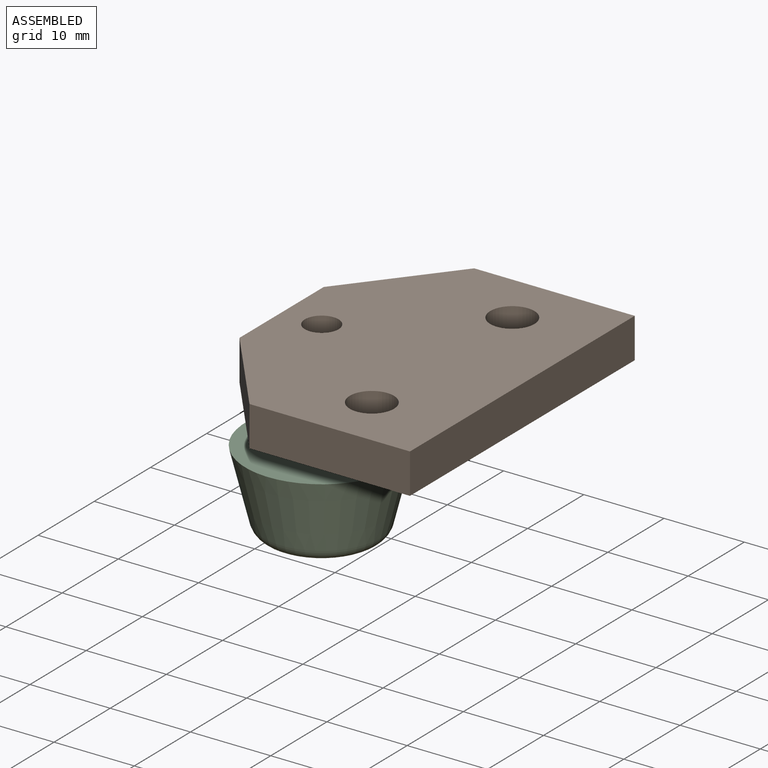
[diagram: assembled view]
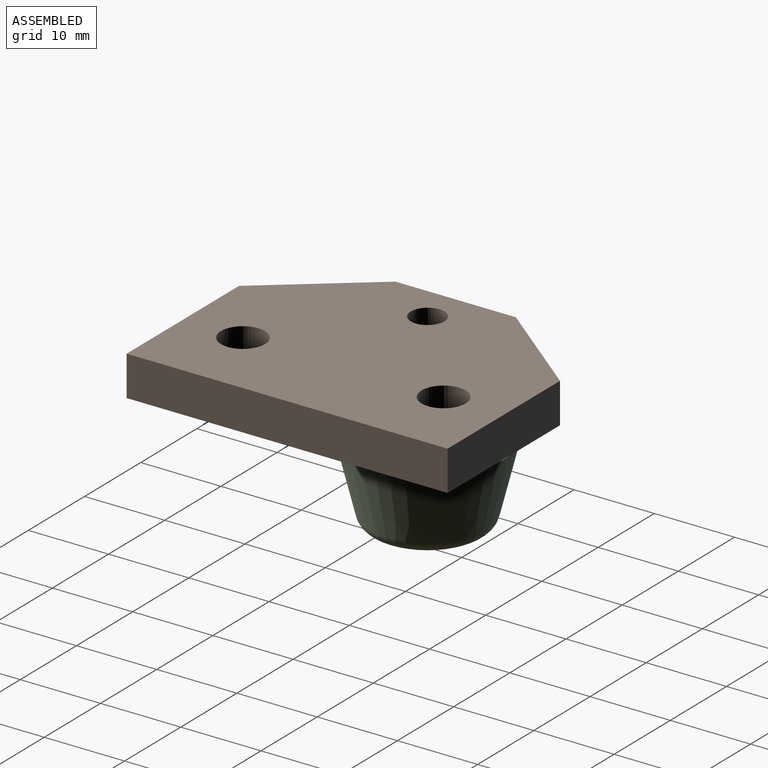
[diagram: assembled view, second angle]
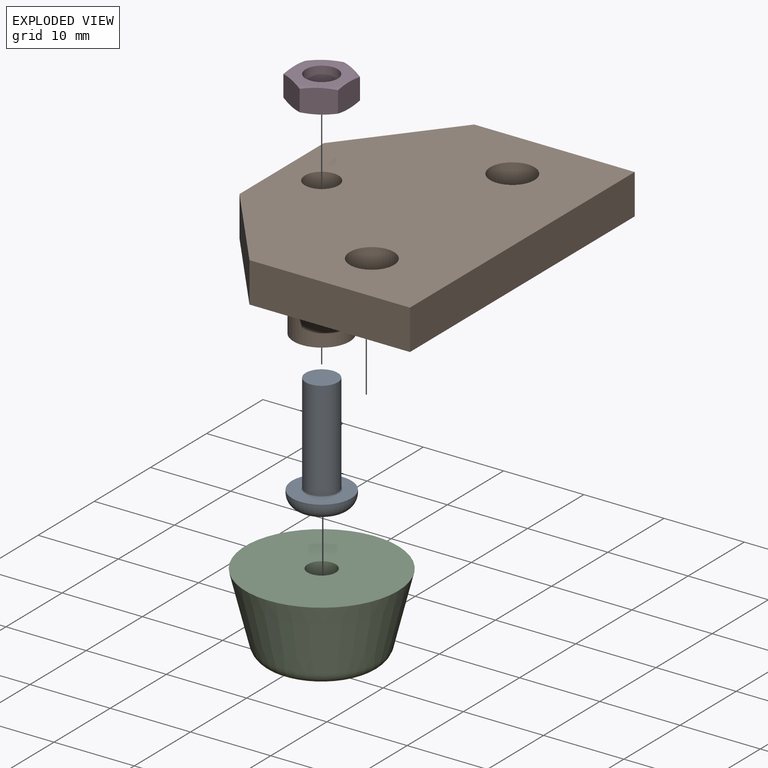
[diagram: exploded view]
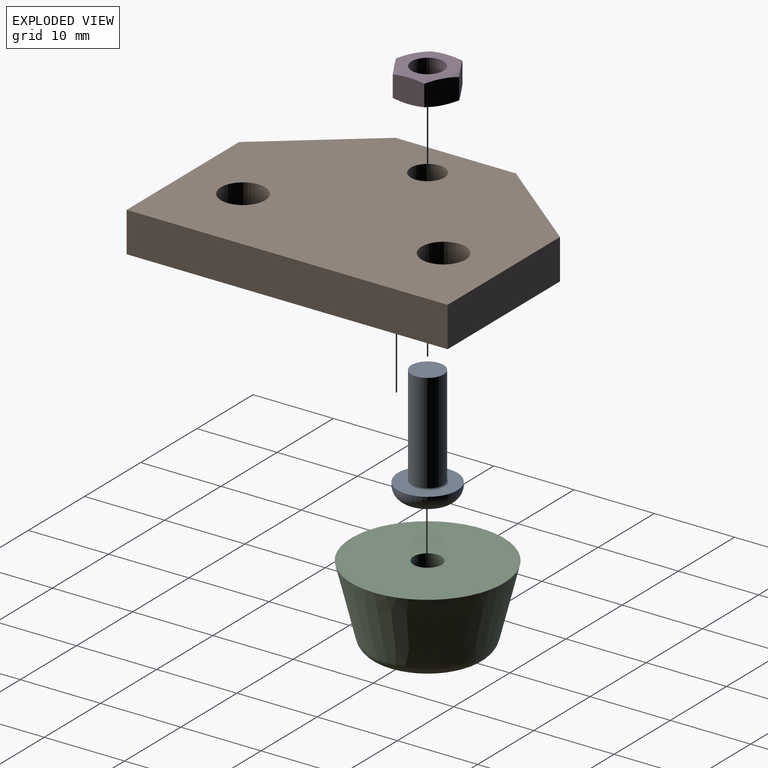
[diagram: exploded view, second angle]
ASSEMBLY  parts=4 mates=3
PART A: 14 faces, bbox 8x8x14.6 mm
  f0: plane 4x4mm, normal (0,0,1), area 7.2mm2, adj f2,f6,f7,f8,f9,f10,f11
  f1: cylinder r=3.7mm len=7.4mm, axis (0,0,1), area 8.8mm2, adj f2,f5
  f2: torus R=2mm, axis (0,0,1), area 49.9mm2, adj f0,f1
  f3: cylinder r=2mm len=12.4mm, axis (0,0,1), area 155.8mm2, adj f4,f13
  f4: torus R=2.2mm, axis (0,0,1), area 4.1mm2, adj f3,f5
  f5: plane 7.4x7.4mm, normal (0,0,-1), area 27.8mm2, adj f1,f4
  f6: plane 1.5x1.25mm, normal (-0.5,-0.87,0), area 2.2mm2, adj f0,f7,f11,f12
  f7: plane 1.5x1.25mm, normal (0.5,-0.87,0), area 2.2mm2, adj f0,f6,f8,f12
  f8: plane 1.5x1.44mm, normal (1,0,0), area 2.2mm2, adj f0,f7,f9,f12
  f9: plane 1.5x1.25mm, normal (0.5,0.87,0), area 2.2mm2, adj f0,f8,f10,f12
  f10: plane 1.5x1.25mm, normal (-0.5,0.87,0), area 2.2mm2, adj f0,f9,f11,f12
  f11: plane 1.5x1.44mm, normal (-1,0,0), area 2.2mm2, adj f0,f6,f10,f12
  f12: plane 2.89x2.5mm, normal (0,0,1), area 5.4mm2, adj f6,f7,f8,f9,f10,f11
  f13: plane 4x4mm, normal (0,0,-1), area 12.6mm2, adj f3
PART B: 33 faces, bbox 30x40x17.2 mm
  f0: plane 10x3.5mm, normal (0,0,1), area 31.6mm2, adj f2,f3,f16,f27,f31
  f1: plane 10x3.5mm, normal (0,0,1), area 31.6mm2, adj f2,f14,f15,f28,f31
  f2: plane 15x9.2mm, normal (1,0,0), area 82.2mm2, adj f0,f1,f4,f9,f10,f12,f13,f14
  f3: plane 4.2x3.5mm, normal (-1,0,0), area 13.8mm2, adj f0,f4,f5,f12,f16,f27
  f4: plane 10x1.75mm, normal (0,0,-1), area 16.3mm2, adj f2,f3,f5,f22,f27
  f5: plane 3.5x3.03mm, normal (0.5,-0.87,0), area 10.5mm2, adj f3,f4,f12,f22,f23,f24
  f6: cylinder r=2.1mm len=4.2mm, axis (0,0,-1), area 39.6mm2, adj f13,f23
  f7: plane 40x5mm, normal (-1,0,0), area 200mm2, adj f8,f11,f12,f13
  f8: plane 20x5mm, normal (0,-1,0), area 100mm2, adj f7,f9,f12,f13
  f9: plane 12.5x10mm, normal (0.78,-0.62,0), area 80mm2, adj f2,f8,f12,f13
  f10: plane 12.5x10mm, normal (0.78,0.62,0), area 80mm2, adj f2,f11,f12,f13
  f11: plane 20x5mm, normal (0,1,0), area 100mm2, adj f7,f10,f12,f13
  f12: plane 40x30mm, normal (0,0,1), area 896.9mm2, adj f2,f3,f5,f7,f8,f9,f10,f11
  f13: plane 40x30mm, normal (0,0,-1), area 1013.6mm2, adj f2,f6,f7,f8,f9,f10,f11,f17
  f14: plane 10x4.2mm, normal (0,-1,0), area 42mm2, adj f1,f2,f12,f15
  f15: plane 4.2x3.5mm, normal (-1,0,0), area 13.8mm2, adj f1,f12,f14,f19,f20,f28
  f16: plane 10x4.2mm, normal (0,1,0), area 42mm2, adj f0,f2,f3,f12
  f17: cylinder r=2.75mm len=5.5mm, axis (0,0,-1), area 86.4mm2, adj f12,f13
  f18: cylinder r=2.75mm len=5.5mm, axis (0,0,-1), area 86.4mm2, adj f12,f13
  f19: plane 10x1.75mm, normal (0,0,-1), area 16.3mm2, adj f2,f15,f20,f21,f28
  f20: plane 3.5x3.03mm, normal (0.5,0.87,0), area 10.5mm2, adj f12,f15,f19,f21,f23,f25
  f21: plane 8x3.5mm, normal (0,1,0), area 28mm2, adj f2,f19,f20,f23
  f22: plane 8x3.5mm, normal (0,-1,0), area 28mm2, adj f2,f4,f5,f23
  f23: plane 12x8.5mm, normal (0,0,1), area 79.4mm2, adj f2,f5,f6,f20,f21,f22,f24,f25
  f24: plane 2x0.97mm, normal (0,-1,0), area 1.9mm2, adj f5,f12,f23,f26
  f25: plane 2x0.97mm, normal (0,1,0), area 1.9mm2, adj f12,f20,f23,f26
  f26: plane 5x2mm, normal (1,0,0), area 10mm2, adj f12,f23,f24,f25
  f27: plane 10x2.7mm, normal (0,-1,0), area 27mm2, adj f0,f2,f3,f4,f29
  f28: plane 10x2.7mm, normal (0,1,0), area 27mm2, adj f1,f2,f15,f19,f29
  f29: plane 7x5mm, normal (0,0,-1), area 19.2mm2, adj f27,f28,f30,f31
  f30: cylinder r=2mm len=8mm, axis (0,0,-1), area 100.5mm2, adj f29,f32
  f31: cylinder r=3.5mm len=8mm, axis (0,0,-1), area 175.9mm2, adj f0,f1,f29,f32
  f32: plane 7x7mm, normal (0,0,1), area 25.9mm2, adj f30,f31
PART C: 7 faces, bbox 19x19x10 mm
  f0: plane 7.5x7.5mm, normal (0,0,-1), area 34.6mm2, adj f1,f6
  f1: cylinder r=3.75mm len=7.5mm, axis (0,0,1), area 117.8mm2, adj f0,f2
  f2: plane 10.88x10.88mm, normal (0,0,-1), area 48.7mm2, adj f1,f3
  f3: torus R=5.44mm, axis (0,0,1), area 109.6mm2, adj f2,f4
  f4: cone r=9.5mm half-angle=14deg, axis (0,0,1), area 463.8mm2, adj f3,f5
  f5: plane 19x19mm, normal (0,0,1), area 273.9mm2, adj f4,f6
  f6: cylinder r=1.75mm len=5mm, axis (0,0,1), area 55mm2, adj f0,f5
PART D: 21 faces, bbox 8.1x8.1x3.3 mm
  f0: cone r=3.4mm half-angle=71.1deg, axis (0,0,-1), area 1mm2, adj f11,f15,f20
  f1: cone r=3.4mm half-angle=71.1deg, axis (0,0,-1), area 1mm2, adj f11,f15,f16
  f2: cone r=3.4mm half-angle=71.1deg, axis (0,0,-1), area 1mm2, adj f11,f16,f17
  f3: cone r=3.4mm half-angle=71.1deg, axis (0,0,-1), area 1mm2, adj f11,f17,f18
  f4: cone r=3.4mm half-angle=71.1deg, axis (0,0,-1), area 1mm2, adj f11,f18,f19
  f5: cone r=3.4mm half-angle=71.1deg, axis (0,0,1), area 1mm2, adj f13,f15,f20
  f6: cone r=3.4mm half-angle=71.1deg, axis (0,0,1), area 1mm2, adj f13,f15,f16
  f7: cone r=3.4mm half-angle=71.1deg, axis (0,0,1), area 1mm2, adj f13,f16,f17
  f8: cone r=3.4mm half-angle=71.1deg, axis (0,0,1), area 1mm2, adj f13,f17,f18
  f9: cone r=3.4mm half-angle=71.1deg, axis (0,0,1), area 1mm2, adj f13,f18,f19
  f10: cone r=3.4mm half-angle=71.1deg, axis (0,0,-1), area 1mm2, adj f11,f19,f20
  f11: plane 6.8x6.8mm, normal (0,0,1), area 23.8mm2, adj f0,f1,f2,f3,f4,f10,f12
  f12: cylinder r=2mm len=4mm, axis (0,0,-1), area 37.7mm2, adj f11,f13
  f13: plane 6.8x6.8mm, normal (0,0,-1), area 23.8mm2, adj f5,f6,f7,f8,f9,f12,f14
  f14: cone r=3.4mm half-angle=71.1deg, axis (0,0,1), area 1mm2, adj f13,f19,f20
  f15: plane 3.7x3.3mm, normal (0.5,0.87,0), area 11.3mm2, adj f0,f1,f5,f6,f16,f20
  f16: plane 3.7x3.3mm, normal (-0.5,0.87,0), area 11.3mm2, adj f1,f2,f6,f7,f15,f17
  f17: plane 4.23x3.3mm, normal (-1,0,0), area 11.3mm2, adj f2,f3,f7,f8,f16,f18
  f18: plane 3.7x3.3mm, normal (-0.5,-0.87,0), area 11.3mm2, adj f3,f4,f8,f9,f17,f19
  f19: plane 3.7x3.3mm, normal (0.5,-0.87,0), area 11.3mm2, adj f4,f9,f10,f14,f18,f20
  f20: plane 4.23x3.3mm, normal (1,0,0), area 11.3mm2, adj f0,f5,f10,f14,f15,f19
PLACE A rot(axis=(0,-1,0),180deg) t=(-8.31,30.95,-2.13)mm
PLACE B rot(axis=(0,-1,0),180deg) t=(16.69,-29.05,18.47)mm
PLACE C t=(-8.31,-9.05,4.87)mm
PLACE D rot(axis=(-1,0,0),180deg) t=(16.69,5.95,15.29)mm
MATE fastened D.f5 <-> B.f6  axis (0,0,1) through (-8.31,-9.05,15.47)mm
MATE fastened A.f1 <-> C.f1  axis (0,0,1) through (-8.31,-9.05,-0.13)mm
MATE fastened D.f0 <-> A.f1  axis (0,0,-1) through (-8.31,-9.05,12.47)mm
